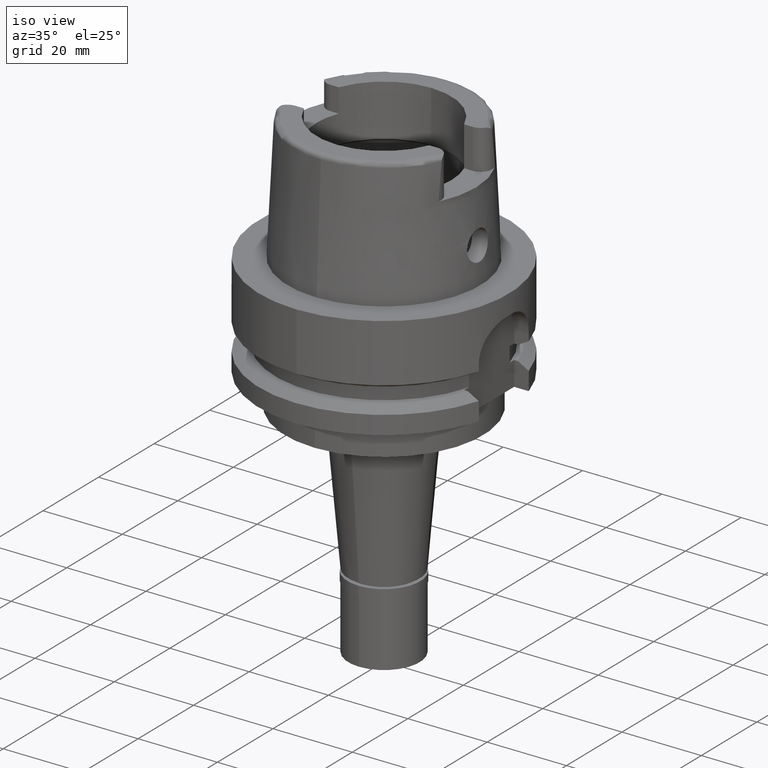
[diagram: clean part render]
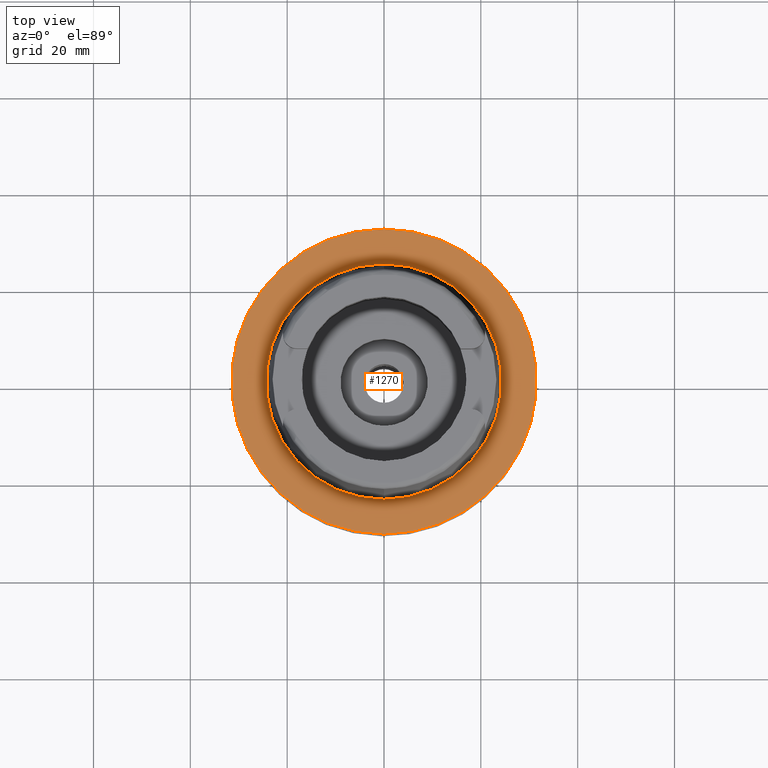
[diagram: tour spotlight — one face highlighted and labeled with its STEP entity id]
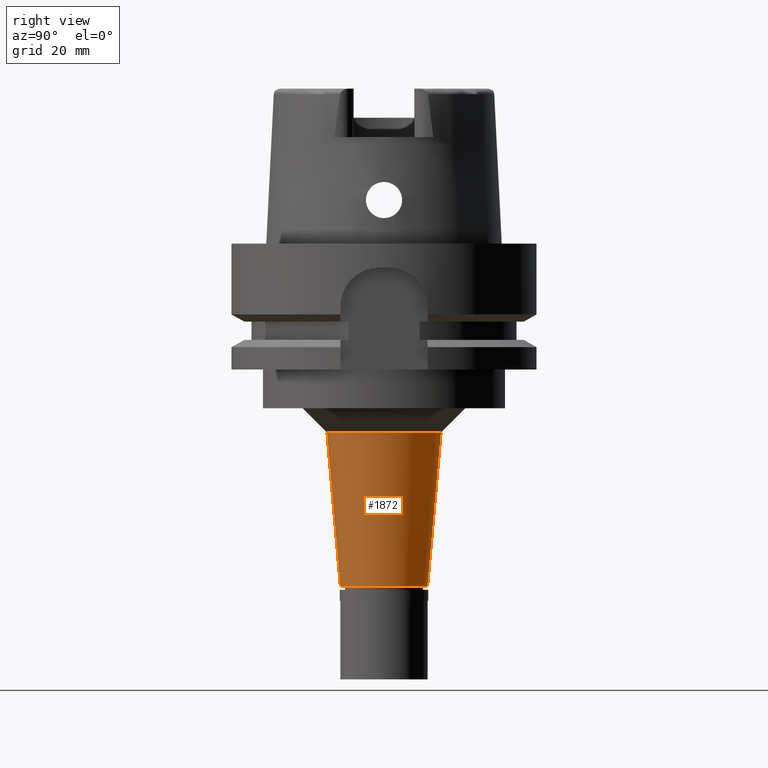
[diagram: tour spotlight — one face highlighted and labeled with its STEP entity id]
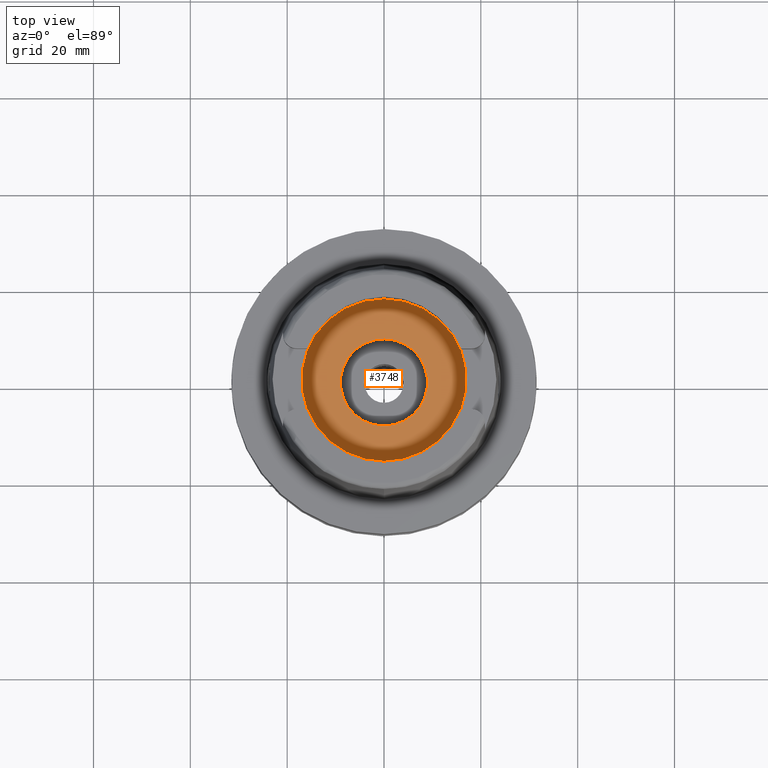
[diagram: tour spotlight — one face highlighted and labeled with its STEP entity id]
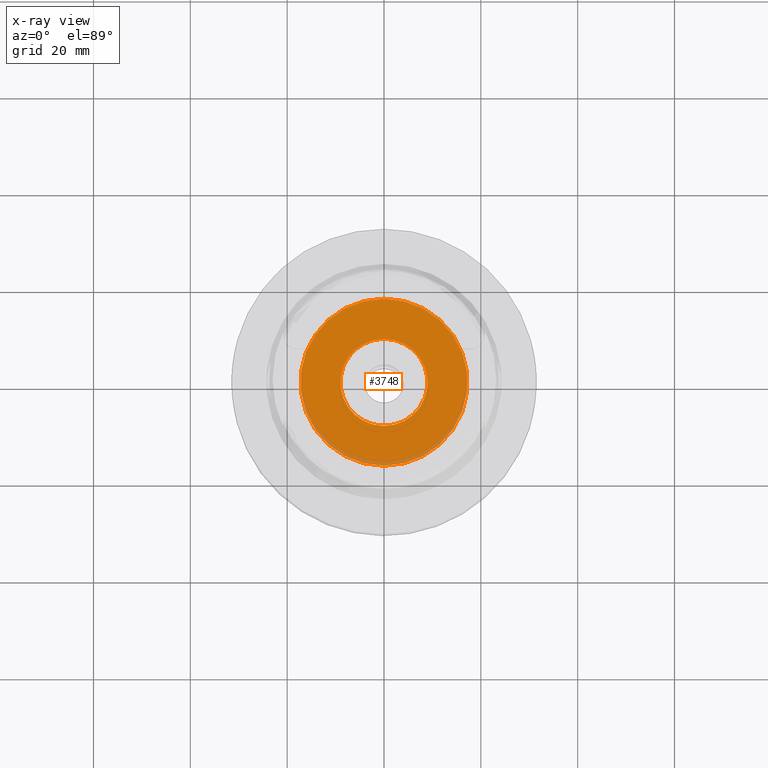
[diagram: x-ray of the same camera — body ghosted, this tour face saturated]
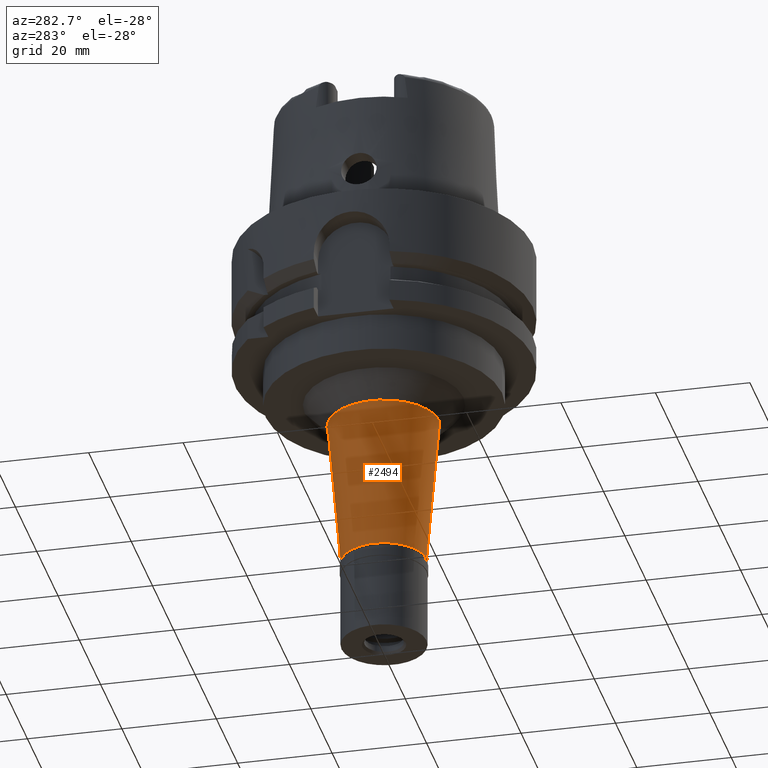
[diagram: tour spotlight — one face highlighted and labeled with its STEP entity id]
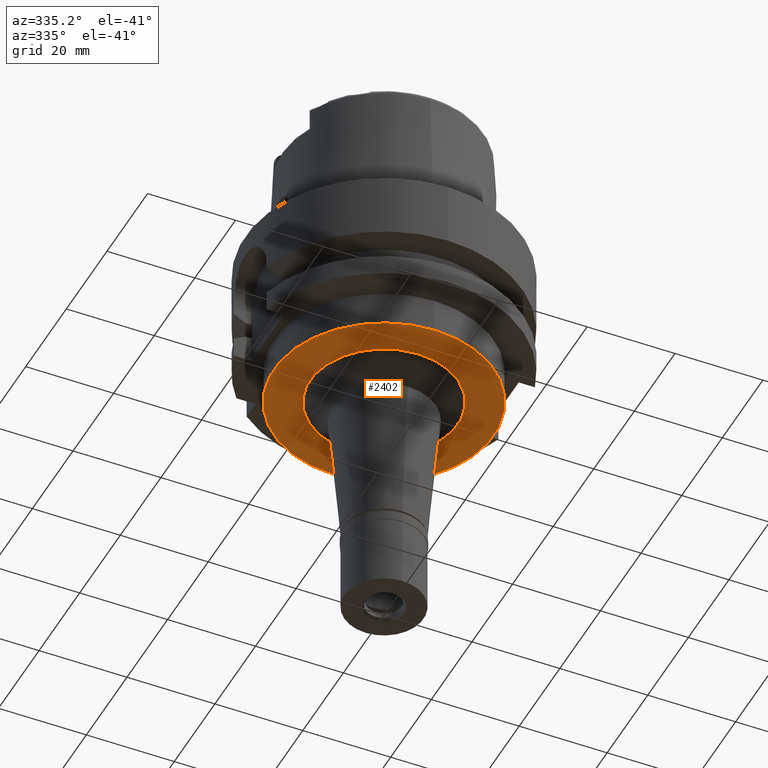
[diagram: tour spotlight — one face highlighted and labeled with its STEP entity id]
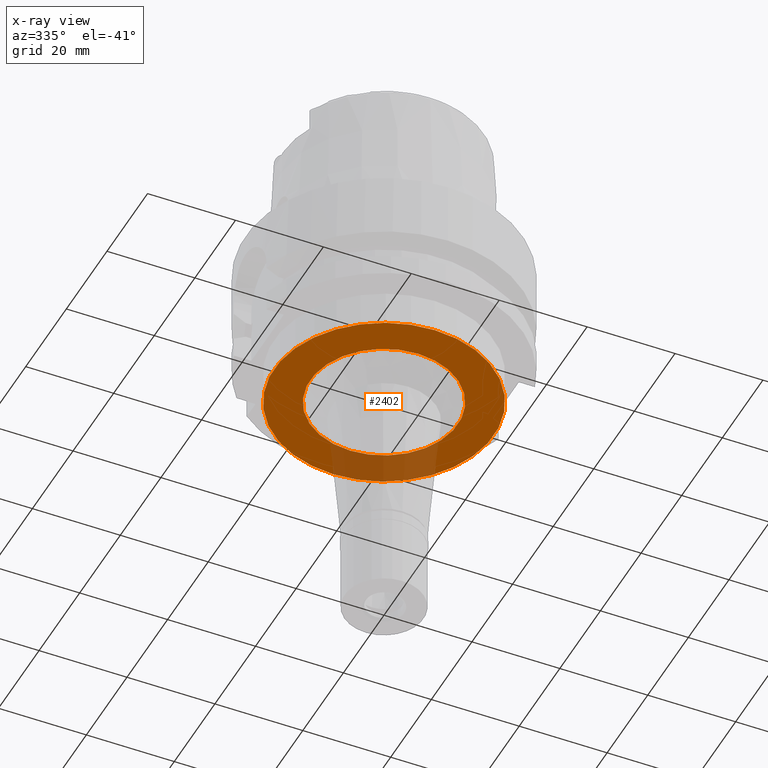
[diagram: x-ray of the same camera — body ghosted, this tour face saturated]
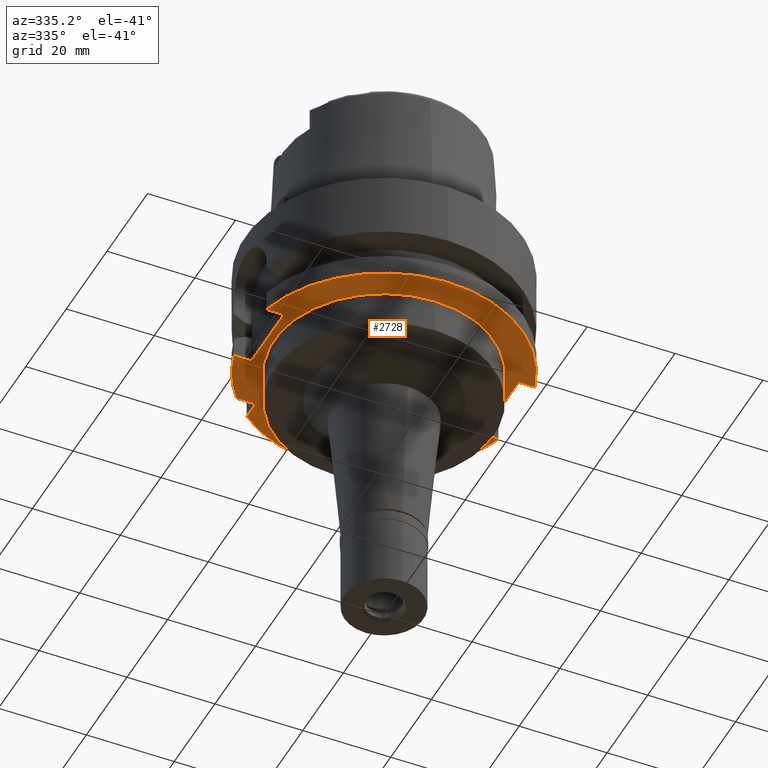
[diagram: tour spotlight — one face highlighted and labeled with its STEP entity id]
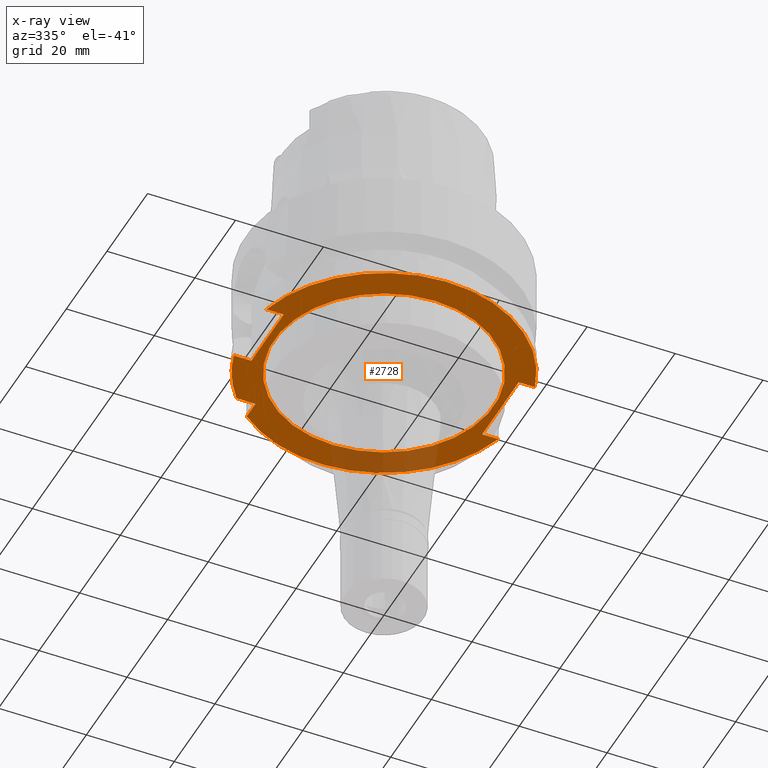
[diagram: x-ray of the same camera — body ghosted, this tour face saturated]
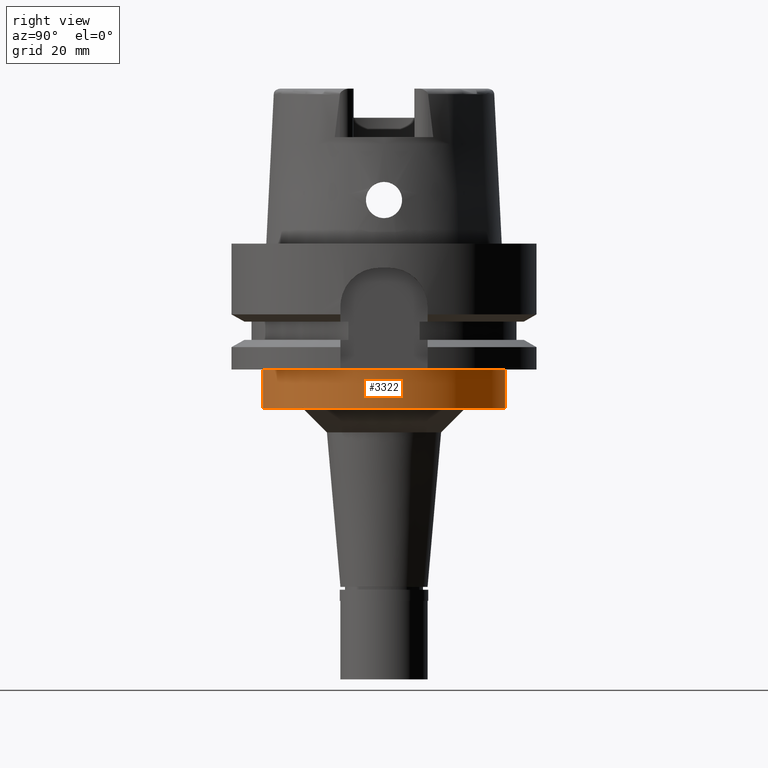
[diagram: tour spotlight — one face highlighted and labeled with its STEP entity id]
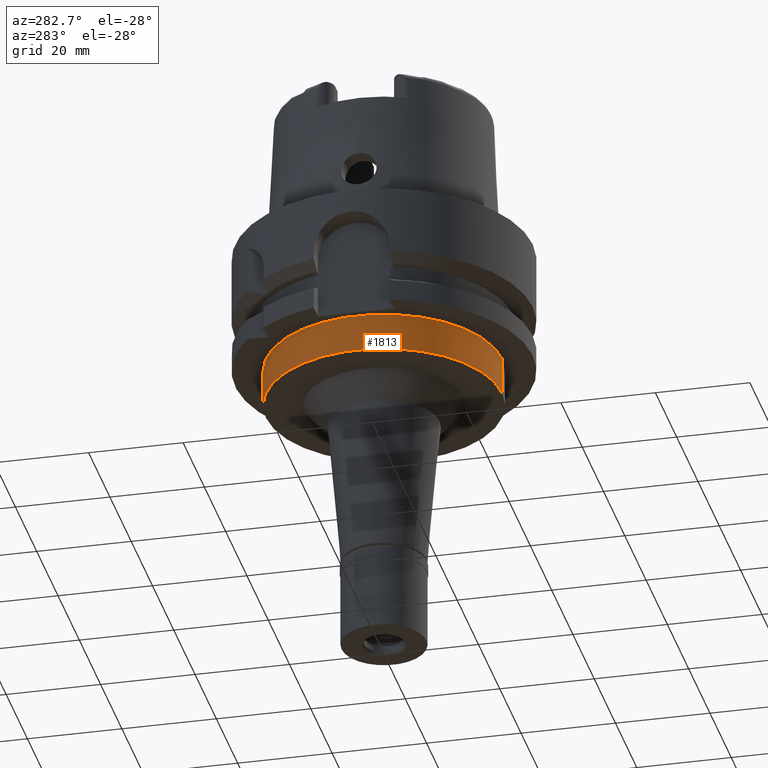
[diagram: tour spotlight — one face highlighted and labeled with its STEP entity id]
A machine part: a face-by-face anatomy tour. The part has 122 B-rep faces; the first image is the clean iso view, then the 8 largest visible faces are spotlighted one at a time (largest first), each with its STEP entity span.

Face 1 — top view, entity #1270. In plain terms, the highlighted planar face has unit normal (0, 0, -1).
Definition (entity closure, byte-faithful):
#33 = AXIS2_PLACEMENT_3D ( 'NONE', #4133, #1643, #1616 ) ;
#75 = VERTEX_POINT ( 'NONE', #925 ) ;
#276 = EDGE_CURVE ( 'NONE', #2488, #4883, #1035, .T. ) ;
#436 = DIRECTION ( 'NONE',  ( 0.0000000000000000000, 1.000000000000000000, 0.0000000000000000000 ) ) ;
#499 = CIRCLE ( 'NONE', #2821, 31.50000000000000000 ) ;
#646 = VERTEX_POINT ( 'NONE', #2199 ) ;
#719 = CARTESIAN_POINT ( 'NONE',  ( 0.0000000000000000000, -24.31503482328999866, 1.882938249763999678E-13 ) ) ;
#885 = DIRECTION ( 'NONE',  ( 0.0000000000000000000, 0.0000000000000000000, 1.000000000000000000 ) ) ;
#925 = CARTESIAN_POINT ( 'NONE',  ( 0.0000000000000000000, 31.50000000000000000, 9.947598300640998705E-14 ) ) ;
#1035 = CIRCLE ( 'NONE', #4176, 24.31503482328999866 ) ;
#1139 = AXIS2_PLACEMENT_3D ( 'NONE', #2075, #3732, #5024 ) ;
#1209 = AXIS2_PLACEMENT_3D ( 'NONE', #3405, #4173, #5042 ) ;
#1270 = ADVANCED_FACE ( 'NONE', ( #2435, #2013 ), #2912, .F. ) ;
#1616 = DIRECTION ( 'NONE',  ( 0.0000000000000000000, -1.000000000000000000, 0.0000000000000000000 ) ) ;
#1643 = DIRECTION ( 'NONE',  ( 0.0000000000000000000, 0.0000000000000000000, 1.000000000000000000 ) ) ;
#1875 = EDGE_LOOP ( 'NONE', ( #4930, #2035 ) ) ;
#2013 = FACE_BOUND ( 'NONE', #1875, .T. ) ;
#2035 = ORIENTED_EDGE ( 'NONE', *, *, #4897, .F. ) ;
#2071 = DIRECTION ( 'NONE',  ( 0.0000000000000000000, 0.0000000000000000000, -1.000000000000000000 ) ) ;
#2075 = CARTESIAN_POINT ( 'NONE',  ( 0.0000000000000000000, 0.0000000000000000000, 0.0000000000000000000 ) ) ;
#2178 = CARTESIAN_POINT ( 'NONE',  ( 0.0000000000000000000, 0.0000000000000000000, 1.136868377215999875E-13 ) ) ;
#2199 = CARTESIAN_POINT ( 'NONE',  ( 0.0000000000000000000, -31.50000000000000000, 9.947598300640998705E-14 ) ) ;
#2435 = FACE_OUTER_BOUND ( 'NONE', #2753, .T. ) ;
#2463 = CIRCLE ( 'NONE', #33, 24.31503482328999866 ) ;
#2488 = VERTEX_POINT ( 'NONE', #5317 ) ;
#2680 = ORIENTED_EDGE ( 'NONE', *, *, #4157, .F. ) ;
#2753 = EDGE_LOOP ( 'NONE', ( #4163, #2680 ) ) ;
#2821 = AXIS2_PLACEMENT_3D ( 'NONE', #4177, #2071, #4208 ) ;
#2912 = PLANE ( 'NONE',  #1139 ) ;
#3405 = CARTESIAN_POINT ( 'NONE',  ( 0.0000000000000000000, 0.0000000000000000000, 9.947598300640998705E-14 ) ) ;
#3732 = DIRECTION ( 'NONE',  ( 0.0000000000000000000, 0.0000000000000000000, -1.000000000000000000 ) ) ;
#4133 = CARTESIAN_POINT ( 'NONE',  ( 0.0000000000000000000, 0.0000000000000000000, 1.136868377215999875E-13 ) ) ;
#4157 = EDGE_CURVE ( 'NONE', #646, #75, #4169, .T. ) ;
#4163 = ORIENTED_EDGE ( 'NONE', *, *, #5475, .F. ) ;
#4169 = CIRCLE ( 'NONE', #1209, 31.50000000000000000 ) ;
#4173 = DIRECTION ( 'NONE',  ( 0.0000000000000000000, 0.0000000000000000000, -1.000000000000000000 ) ) ;
#4176 = AXIS2_PLACEMENT_3D ( 'NONE', #2178, #885, #436 ) ;
#4177 = CARTESIAN_POINT ( 'NONE',  ( 0.0000000000000000000, 0.0000000000000000000, 9.947598300640998705E-14 ) ) ;
#4208 = DIRECTION ( 'NONE',  ( 0.0000000000000000000, 1.000000000000000000, 0.0000000000000000000 ) ) ;
#4883 = VERTEX_POINT ( 'NONE', #719 ) ;
#4897 = EDGE_CURVE ( 'NONE', #4883, #2488, #2463, .T. ) ;
#4930 = ORIENTED_EDGE ( 'NONE', *, *, #276, .F. ) ;
#5024 = DIRECTION ( 'NONE',  ( 0.0000000000000000000, -1.000000000000000000, 0.0000000000000000000 ) ) ;
#5042 = DIRECTION ( 'NONE',  ( 0.0000000000000000000, -1.000000000000000000, 0.0000000000000000000 ) ) ;
#5317 = CARTESIAN_POINT ( 'NONE',  ( 0.0000000000000000000, 24.31503482328999866, 1.136868377215999875E-13 ) ) ;
#5475 = EDGE_CURVE ( 'NONE', #75, #646, #499, .T. ) ;

Face 2 — right view, entity #1872. In plain terms, the highlighted conical surface has half-angle 5 deg.
Definition (entity closure, byte-faithful):
#274 = CARTESIAN_POINT ( 'NONE',  ( 0.0000000000000000000, 9.000000000000998313, -70.90000000000000568 ) ) ;
#332 = ORIENTED_EDGE ( 'NONE', *, *, #2127, .F. ) ;
#550 = CARTESIAN_POINT ( 'NONE',  ( 0.0000000000000000000, 0.0000000000000000000, -39.00000000000000000 ) ) ;
#628 = DIRECTION ( 'NONE',  ( 0.0000000000000000000, 0.0000000000000000000, 1.000000000000000000 ) ) ;
#882 = DIRECTION ( 'NONE',  ( 0.0000000000000000000, 0.0000000000000000000, 1.000000000000000000 ) ) ;
#962 = LINE ( 'NONE', #4746, #5371 ) ;
#1042 = CARTESIAN_POINT ( 'NONE',  ( 0.0000000000000000000, 0.0000000000000000000, -70.90000000000000568 ) ) ;
#1156 = VERTEX_POINT ( 'NONE', #1608 ) ;
#1273 = ORIENTED_EDGE ( 'NONE', *, *, #1718, .T. ) ;
#1395 = DIRECTION ( 'NONE',  ( 0.0000000000000000000, 1.000000000000000000, 0.0000000000000000000 ) ) ;
#1506 = CONICAL_SURFACE ( 'NONE', #4016, 10.39544418324000041, 0.08726646259969973729 ) ;
#1513 = VERTEX_POINT ( 'NONE', #4990 ) ;
#1523 = CIRCLE ( 'NONE', #3219, 11.79088836648000083 ) ;
#1608 = CARTESIAN_POINT ( 'NONE',  ( 0.0000000000000000000, 11.79088836648000083, -39.00000000000000000 ) ) ;
#1718 = EDGE_CURVE ( 'NONE', #2755, #1513, #2208, .T. ) ;
#1872 = ADVANCED_FACE ( 'NONE', ( #2802 ), #1506, .T. ) ;
#1955 = EDGE_LOOP ( 'NONE', ( #4851, #1273, #4618, #332 ) ) ;
#2127 = EDGE_CURVE ( 'NONE', #1156, #5341, #962, .T. ) ;
#2208 = LINE ( 'NONE', #4257, #4105 ) ;
#2335 = DIRECTION ( 'NONE',  ( 0.0000000000000000000, -1.000000000000000000, 0.0000000000000000000 ) ) ;
#2624 = DIRECTION ( 'NONE',  ( 0.0000000000000000000, -0.08715574274770356011, -0.9961946980917415484 ) ) ;
#2755 = VERTEX_POINT ( 'NONE', #3806 ) ;
#2802 = FACE_OUTER_BOUND ( 'NONE', #1955, .T. ) ;
#2906 = EDGE_CURVE ( 'NONE', #2755, #1156, #1523, .T. ) ;
#3219 = AXIS2_PLACEMENT_3D ( 'NONE', #550, #882, #3489 ) ;
#3259 = DIRECTION ( 'NONE',  ( 0.0000000000000000000, 0.0000000000000000000, 1.000000000000000000 ) ) ;
#3489 = DIRECTION ( 'NONE',  ( 0.0000000000000000000, -1.000000000000000000, 0.0000000000000000000 ) ) ;
#3521 = CARTESIAN_POINT ( 'NONE',  ( 0.0000000000000000000, 0.0000000000000000000, -54.94999999999999574 ) ) ;
#3806 = CARTESIAN_POINT ( 'NONE',  ( 0.0000000000000000000, -11.79088836648000083, -39.00000000000000000 ) ) ;
#4016 = AXIS2_PLACEMENT_3D ( 'NONE', #3521, #3259, #1395 ) ;
#4105 = VECTOR ( 'NONE', #4316, 1000.000000000000000 ) ;
#4257 = CARTESIAN_POINT ( 'NONE',  ( 0.0000000000000000000, -11.79088836648000083, -39.00000000000000000 ) ) ;
#4316 = DIRECTION ( 'NONE',  ( 0.0000000000000000000, 0.08715574274770356011, -0.9961946980917415484 ) ) ;
#4444 = CIRCLE ( 'NONE', #4888, 9.000000000002000178 ) ;
#4618 = ORIENTED_EDGE ( 'NONE', *, *, #5012, .T. ) ;
#4746 = CARTESIAN_POINT ( 'NONE',  ( 0.0000000000000000000, 11.79088836648000083, -39.00000000000000000 ) ) ;
#4851 = ORIENTED_EDGE ( 'NONE', *, *, #2906, .F. ) ;
#4888 = AXIS2_PLACEMENT_3D ( 'NONE', #1042, #628, #2335 ) ;
#4990 = CARTESIAN_POINT ( 'NONE',  ( 0.0000000000000000000, -9.000000000002000178, -70.90000000000000568 ) ) ;
#5012 = EDGE_CURVE ( 'NONE', #1513, #5341, #4444, .T. ) ;
#5341 = VERTEX_POINT ( 'NONE', #274 ) ;
#5371 = VECTOR ( 'NONE', #2624, 1000.000000000000000 ) ;

Face 3 — top view, entity #3748. An x-ray twin of the same camera follows (body ghosted, this face saturated) — the face is partly hidden behind the body. In plain terms, the highlighted planar face has unit normal (0, 0, -1).
Definition (entity closure, byte-faithful):
#4 = CARTESIAN_POINT ( 'NONE',  ( 0.0000000000000000000, 17.25000000000000000, -9.950000000000001066 ) ) ;
#39 = CARTESIAN_POINT ( 'NONE',  ( 0.0000000000000000000, 0.0000000000000000000, -9.950000000000001066 ) ) ;
#151 = AXIS2_PLACEMENT_3D ( 'NONE', #39, #1762, #5192 ) ;
#164 = ORIENTED_EDGE ( 'NONE', *, *, #1450, .F. ) ;
#260 = DIRECTION ( 'NONE',  ( 0.0000000000000000000, -1.000000000000000000, 0.0000000000000000000 ) ) ;
#356 = DIRECTION ( 'NONE',  ( 0.0000000000000000000, 1.000000000000000000, 0.0000000000000000000 ) ) ;
#496 = CIRCLE ( 'NONE', #1212, 9.000000000000000000 ) ;
#505 = DIRECTION ( 'NONE',  ( 0.0000000000000000000, 0.0000000000000000000, 1.000000000000000000 ) ) ;
#522 = ORIENTED_EDGE ( 'NONE', *, *, #3122, .F. ) ;
#616 = DIRECTION ( 'NONE',  ( 0.0000000000000000000, -1.000000000000000000, 0.0000000000000000000 ) ) ;
#929 = CARTESIAN_POINT ( 'NONE',  ( 0.0000000000000000000, 0.0000000000000000000, -9.950000000000001066 ) ) ;
#955 = EDGE_LOOP ( 'NONE', ( #1830, #2176 ) ) ;
#1118 = CARTESIAN_POINT ( 'NONE',  ( 0.0000000000000000000, 0.0000000000000000000, -9.950000000000001066 ) ) ;
#1212 = AXIS2_PLACEMENT_3D ( 'NONE', #929, #505, #616 ) ;
#1263 = VERTEX_POINT ( 'NONE', #4582 ) ;
#1392 = CIRCLE ( 'NONE', #4791, 9.000000000000000000 ) ;
#1450 = EDGE_CURVE ( 'NONE', #4213, #4617, #5358, .T. ) ;
#1606 = DIRECTION ( 'NONE',  ( 0.0000000000000000000, -1.000000000000000000, 0.0000000000000000000 ) ) ;
#1762 = DIRECTION ( 'NONE',  ( 0.0000000000000000000, 0.0000000000000000000, -1.000000000000000000 ) ) ;
#1830 = ORIENTED_EDGE ( 'NONE', *, *, #4259, .F. ) ;
#1857 = DIRECTION ( 'NONE',  ( 0.0000000000000000000, 0.0000000000000000000, -1.000000000000000000 ) ) ;
#1954 = FACE_OUTER_BOUND ( 'NONE', #2628, .T. ) ;
#2011 = FACE_BOUND ( 'NONE', #955, .T. ) ;
#2176 = ORIENTED_EDGE ( 'NONE', *, *, #5227, .F. ) ;
#2358 = CARTESIAN_POINT ( 'NONE',  ( 0.0000000000000000000, 9.000000000000000000, -9.950000000000001066 ) ) ;
#2389 = CARTESIAN_POINT ( 'NONE',  ( 0.0000000000000000000, 0.0000000000000000000, -9.950000000000001066 ) ) ;
#2482 = DIRECTION ( 'NONE',  ( 0.0000000000000000000, 0.0000000000000000000, 1.000000000000000000 ) ) ;
#2628 = EDGE_LOOP ( 'NONE', ( #164, #522 ) ) ;
#3030 = AXIS2_PLACEMENT_3D ( 'NONE', #1118, #5455, #1606 ) ;
#3122 = EDGE_CURVE ( 'NONE', #4617, #4213, #3769, .T. ) ;
#3320 = CARTESIAN_POINT ( 'NONE',  ( 0.0000000000000000000, -17.25000000000000000, -9.950000000000001066 ) ) ;
#3730 = PLANE ( 'NONE',  #3030 ) ;
#3748 = ADVANCED_FACE ( 'NONE', ( #1954, #2011 ), #3730, .F. ) ;
#3769 = CIRCLE ( 'NONE', #4486, 17.25000000000000000 ) ;
#4213 = VERTEX_POINT ( 'NONE', #4 ) ;
#4259 = EDGE_CURVE ( 'NONE', #5134, #1263, #1392, .T. ) ;
#4486 = AXIS2_PLACEMENT_3D ( 'NONE', #2389, #1857, #260 ) ;
#4582 = CARTESIAN_POINT ( 'NONE',  ( 0.0000000000000000000, -9.000000000000000000, -9.950000000000001066 ) ) ;
#4617 = VERTEX_POINT ( 'NONE', #3320 ) ;
#4791 = AXIS2_PLACEMENT_3D ( 'NONE', #5478, #2482, #356 ) ;
#5134 = VERTEX_POINT ( 'NONE', #2358 ) ;
#5192 = DIRECTION ( 'NONE',  ( 0.0000000000000000000, 1.000000000000000000, 0.0000000000000000000 ) ) ;
#5227 = EDGE_CURVE ( 'NONE', #1263, #5134, #496, .T. ) ;
#5358 = CIRCLE ( 'NONE', #151, 17.25000000000000000 ) ;
#5455 = DIRECTION ( 'NONE',  ( 0.0000000000000000000, 0.0000000000000000000, -1.000000000000000000 ) ) ;
#5478 = CARTESIAN_POINT ( 'NONE',  ( 0.0000000000000000000, 0.0000000000000000000, -9.950000000000001066 ) ) ;

Face 4 — auxiliary view, entity #2494. In plain terms, the highlighted conical surface has half-angle 5 deg.
Definition (entity closure, byte-faithful):
#274 = CARTESIAN_POINT ( 'NONE',  ( 0.0000000000000000000, 9.000000000000998313, -70.90000000000000568 ) ) ;
#281 = DIRECTION ( 'NONE',  ( 0.0000000000000000000, 0.0000000000000000000, 1.000000000000000000 ) ) ;
#805 = DIRECTION ( 'NONE',  ( 0.0000000000000000000, -1.000000000000000000, 0.0000000000000000000 ) ) ;
#962 = LINE ( 'NONE', #4746, #5371 ) ;
#1156 = VERTEX_POINT ( 'NONE', #1608 ) ;
#1168 = ORIENTED_EDGE ( 'NONE', *, *, #2127, .T. ) ;
#1271 = CARTESIAN_POINT ( 'NONE',  ( 0.0000000000000000000, 0.0000000000000000000, -39.00000000000000000 ) ) ;
#1342 = AXIS2_PLACEMENT_3D ( 'NONE', #3279, #281, #4968 ) ;
#1513 = VERTEX_POINT ( 'NONE', #4990 ) ;
#1608 = CARTESIAN_POINT ( 'NONE',  ( 0.0000000000000000000, 11.79088836648000083, -39.00000000000000000 ) ) ;
#1718 = EDGE_CURVE ( 'NONE', #2755, #1513, #2208, .T. ) ;
#1953 = CIRCLE ( 'NONE', #2763, 9.000000000002000178 ) ;
#2127 = EDGE_CURVE ( 'NONE', #1156, #5341, #962, .T. ) ;
#2208 = LINE ( 'NONE', #4257, #4105 ) ;
#2494 = ADVANCED_FACE ( 'NONE', ( #3617 ), #2854, .T. ) ;
#2560 = EDGE_CURVE ( 'NONE', #5341, #1513, #1953, .T. ) ;
#2574 = EDGE_LOOP ( 'NONE', ( #5025, #2745, #4102, #1168 ) ) ;
#2624 = DIRECTION ( 'NONE',  ( 0.0000000000000000000, -0.08715574274770356011, -0.9961946980917415484 ) ) ;
#2745 = ORIENTED_EDGE ( 'NONE', *, *, #1718, .F. ) ;
#2755 = VERTEX_POINT ( 'NONE', #3806 ) ;
#2763 = AXIS2_PLACEMENT_3D ( 'NONE', #4498, #2828, #4555 ) ;
#2828 = DIRECTION ( 'NONE',  ( 0.0000000000000000000, 0.0000000000000000000, 1.000000000000000000 ) ) ;
#2854 = CONICAL_SURFACE ( 'NONE', #1342, 10.39544418324000041, 0.08726646259969973729 ) ;
#3279 = CARTESIAN_POINT ( 'NONE',  ( 0.0000000000000000000, 0.0000000000000000000, -54.94999999999999574 ) ) ;
#3617 = FACE_OUTER_BOUND ( 'NONE', #2574, .T. ) ;
#3806 = CARTESIAN_POINT ( 'NONE',  ( 0.0000000000000000000, -11.79088836648000083, -39.00000000000000000 ) ) ;
#4102 = ORIENTED_EDGE ( 'NONE', *, *, #4637, .T. ) ;
#4105 = VECTOR ( 'NONE', #4316, 1000.000000000000000 ) ;
#4257 = CARTESIAN_POINT ( 'NONE',  ( 0.0000000000000000000, -11.79088836648000083, -39.00000000000000000 ) ) ;
#4316 = DIRECTION ( 'NONE',  ( 0.0000000000000000000, 0.08715574274770356011, -0.9961946980917415484 ) ) ;
#4498 = CARTESIAN_POINT ( 'NONE',  ( 0.0000000000000000000, 0.0000000000000000000, -70.90000000000000568 ) ) ;
#4555 = DIRECTION ( 'NONE',  ( 0.0000000000000000000, 1.000000000000000000, 0.0000000000000000000 ) ) ;
#4637 = EDGE_CURVE ( 'NONE', #2755, #1156, #5256, .T. ) ;
#4647 = DIRECTION ( 'NONE',  ( 0.0000000000000000000, 0.0000000000000000000, -1.000000000000000000 ) ) ;
#4746 = CARTESIAN_POINT ( 'NONE',  ( 0.0000000000000000000, 11.79088836648000083, -39.00000000000000000 ) ) ;
#4796 = AXIS2_PLACEMENT_3D ( 'NONE', #1271, #4647, #805 ) ;
#4968 = DIRECTION ( 'NONE',  ( 0.0000000000000000000, 1.000000000000000000, 0.0000000000000000000 ) ) ;
#4990 = CARTESIAN_POINT ( 'NONE',  ( 0.0000000000000000000, -9.000000000002000178, -70.90000000000000568 ) ) ;
#5025 = ORIENTED_EDGE ( 'NONE', *, *, #2560, .T. ) ;
#5256 = CIRCLE ( 'NONE', #4796, 11.79088836648000083 ) ;
#5341 = VERTEX_POINT ( 'NONE', #274 ) ;
#5371 = VECTOR ( 'NONE', #2624, 1000.000000000000000 ) ;

Face 5 — auxiliary view, entity #2402. An x-ray twin of the same camera follows (body ghosted, this face saturated) — the face is partly hidden behind the body. In plain terms, the highlighted planar face has unit normal (0, 0, -1).
Definition (entity closure, byte-faithful):
#70 = CIRCLE ( 'NONE', #5102, 16.79088836648000083 ) ;
#100 = CARTESIAN_POINT ( 'NONE',  ( 0.0000000000000000000, -16.79088836648000083, -34.00000000000000000 ) ) ;
#209 = CARTESIAN_POINT ( 'NONE',  ( 0.0000000000000000000, 0.0000000000000000000, -34.00000000000000000 ) ) ;
#399 = EDGE_CURVE ( 'NONE', #3007, #1160, #2635, .T. ) ;
#595 = PLANE ( 'NONE',  #3663 ) ;
#645 = DIRECTION ( 'NONE',  ( 0.0000000000000000000, 0.0000000000000000000, -1.000000000000000000 ) ) ;
#680 = DIRECTION ( 'NONE',  ( 0.0000000000000000000, 0.0000000000000000000, -1.000000000000000000 ) ) ;
#858 = DIRECTION ( 'NONE',  ( 0.0000000000000000000, 1.000000000000000000, 0.0000000000000000000 ) ) ;
#912 = CARTESIAN_POINT ( 'NONE',  ( 0.0000000000000000000, 25.00000000000000000, -34.00000000000000000 ) ) ;
#1077 = EDGE_LOOP ( 'NONE', ( #1522, #2873 ) ) ;
#1160 = VERTEX_POINT ( 'NONE', #4214 ) ;
#1339 = CARTESIAN_POINT ( 'NONE',  ( 0.0000000000000000000, 0.0000000000000000000, -34.00000000000000000 ) ) ;
#1521 = DIRECTION ( 'NONE',  ( 0.0000000000000000000, -1.000000000000000000, 0.0000000000000000000 ) ) ;
#1522 = ORIENTED_EDGE ( 'NONE', *, *, #399, .F. ) ;
#2209 = AXIS2_PLACEMENT_3D ( 'NONE', #1339, #4678, #858 ) ;
#2357 = EDGE_LOOP ( 'NONE', ( #4448, #4869 ) ) ;
#2402 = ADVANCED_FACE ( 'NONE', ( #4910, #4526 ), #595, .T. ) ;
#2405 = CIRCLE ( 'NONE', #5561, 25.00000000000000000 ) ;
#2433 = DIRECTION ( 'NONE',  ( 0.0000000000000000000, 0.0000000000000000000, -1.000000000000000000 ) ) ;
#2635 = CIRCLE ( 'NONE', #2209, 25.00000000000000000 ) ;
#2744 = CARTESIAN_POINT ( 'NONE',  ( 0.0000000000000000000, 0.0000000000000000000, -34.00000000000000000 ) ) ;
#2873 = ORIENTED_EDGE ( 'NONE', *, *, #3986, .F. ) ;
#2874 = DIRECTION ( 'NONE',  ( 0.0000000000000000000, 0.0000000000000000000, 1.000000000000000000 ) ) ;
#3007 = VERTEX_POINT ( 'NONE', #912 ) ;
#3663 = AXIS2_PLACEMENT_3D ( 'NONE', #2744, #680, #1521 ) ;
#3721 = CARTESIAN_POINT ( 'NONE',  ( 0.0000000000000000000, 16.79088836648000083, -34.00000000000000000 ) ) ;
#3740 = EDGE_CURVE ( 'NONE', #5249, #4135, #70, .T. ) ;
#3778 = EDGE_CURVE ( 'NONE', #4135, #5249, #4476, .T. ) ;
#3899 = DIRECTION ( 'NONE',  ( 0.0000000000000000000, 1.000000000000000000, 0.0000000000000000000 ) ) ;
#3986 = EDGE_CURVE ( 'NONE', #1160, #3007, #2405, .T. ) ;
#4135 = VERTEX_POINT ( 'NONE', #3721 ) ;
#4141 = DIRECTION ( 'NONE',  ( 0.0000000000000000000, -1.000000000000000000, 0.0000000000000000000 ) ) ;
#4150 = DIRECTION ( 'NONE',  ( 0.0000000000000000000, -1.000000000000000000, 0.0000000000000000000 ) ) ;
#4180 = CARTESIAN_POINT ( 'NONE',  ( 0.0000000000000000000, 0.0000000000000000000, -34.00000000000000000 ) ) ;
#4214 = CARTESIAN_POINT ( 'NONE',  ( 0.0000000000000000000, -25.00000000000000000, -34.00000000000000000 ) ) ;
#4448 = ORIENTED_EDGE ( 'NONE', *, *, #3778, .F. ) ;
#4476 = CIRCLE ( 'NONE', #5377, 16.79088836648000083 ) ;
#4526 = FACE_BOUND ( 'NONE', #2357, .T. ) ;
#4678 = DIRECTION ( 'NONE',  ( 0.0000000000000000000, 0.0000000000000000000, 1.000000000000000000 ) ) ;
#4869 = ORIENTED_EDGE ( 'NONE', *, *, #3740, .F. ) ;
#4910 = FACE_OUTER_BOUND ( 'NONE', #1077, .T. ) ;
#5102 = AXIS2_PLACEMENT_3D ( 'NONE', #5367, #2433, #4150 ) ;
#5249 = VERTEX_POINT ( 'NONE', #100 ) ;
#5367 = CARTESIAN_POINT ( 'NONE',  ( 0.0000000000000000000, 0.0000000000000000000, -34.00000000000000000 ) ) ;
#5377 = AXIS2_PLACEMENT_3D ( 'NONE', #4180, #645, #3899 ) ;
#5561 = AXIS2_PLACEMENT_3D ( 'NONE', #209, #2874, #4141 ) ;

Face 6 — auxiliary view, entity #2728. An x-ray twin of the same camera follows (body ghosted, this face saturated) — the face is partly hidden behind the body. In plain terms, the highlighted planar face has unit normal (0, 0, -1).
Definition (entity closure, byte-faithful):
#114 = CARTESIAN_POINT ( 'NONE',  ( 0.0000000000000000000, -25.00000000000000000, -26.00000000000000000 ) ) ;
#169 = AXIS2_PLACEMENT_3D ( 'NONE', #542, #3964, #3992 ) ;
#177 = DIRECTION ( 'NONE',  ( -1.000000000000000000, -8.776122650817999518E-14, 0.0000000000000000000 ) ) ;
#189 = CARTESIAN_POINT ( 'NONE',  ( -26.50000000000000000, 8.000000000000000000, -26.00000000000000000 ) ) ;
#198 = EDGE_CURVE ( 'NONE', #2911, #2156, #597, .T. ) ;
#208 = LINE ( 'NONE', #3294, #1672 ) ;
#216 = CARTESIAN_POINT ( 'NONE',  ( -26.50000000000000000, 8.000000000000000000, -26.00000000000000000 ) ) ;
#328 = DIRECTION ( 'NONE',  ( -1.000000000000000000, -7.226999566092000914E-14, 0.0000000000000000000 ) ) ;
#361 = VECTOR ( 'NONE', #3112, 1000.000000000000000 ) ;
#429 = VERTEX_POINT ( 'NONE', #2612 ) ;
#524 = DIRECTION ( 'NONE',  ( -1.000000000000000000, -1.540316790609000194E-13, 0.0000000000000000000 ) ) ;
#542 = CARTESIAN_POINT ( 'NONE',  ( 0.0000000000000000000, 0.0000000000000000000, -26.00000000000000000 ) ) ;
#597 = CIRCLE ( 'NONE', #3366, 25.00000000000000000 ) ;
#754 = DIRECTION ( 'NONE',  ( 0.0000000000000000000, -1.000000000000000000, 0.0000000000000000000 ) ) ;
#779 = CARTESIAN_POINT ( 'NONE',  ( 0.0000000000000000000, 0.0000000000000000000, -26.00000000000000000 ) ) ;
#814 = DIRECTION ( 'NONE',  ( 0.0000000000000000000, 1.000000000000000000, 0.0000000000000000000 ) ) ;
#853 = ORIENTED_EDGE ( 'NONE', *, *, #5406, .T. ) ;
#855 = DIRECTION ( 'NONE',  ( 0.0000000000000000000, 0.0000000000000000000, -1.000000000000000000 ) ) ;
#901 = EDGE_CURVE ( 'NONE', #3338, #3438, #1411, .T. ) ;
#913 = VERTEX_POINT ( 'NONE', #2623 ) ;
#977 = LINE ( 'NONE', #2673, #4570 ) ;
#997 = VERTEX_POINT ( 'NONE', #216 ) ;
#1010 = CARTESIAN_POINT ( 'NONE',  ( -20.00000000000000000, 24.33618704727999926, -26.00000000000000000 ) ) ;
#1040 = VERTEX_POINT ( 'NONE', #1897 ) ;
#1045 = AXIS2_PLACEMENT_3D ( 'NONE', #2190, #3910, #4384 ) ;
#1055 = EDGE_CURVE ( 'NONE', #3338, #429, #4934, .T. ) ;
#1230 = DIRECTION ( 'NONE',  ( 0.0000000000000000000, 1.000000000000000000, 0.0000000000000000000 ) ) ;
#1411 = CIRCLE ( 'NONE', #1045, 31.50000000000000000 ) ;
#1421 = ORIENTED_EDGE ( 'NONE', *, *, #2302, .F. ) ;
#1440 = CARTESIAN_POINT ( 'NONE',  ( 0.0000000000000000000, 25.00000000000000000, -26.00000000000000000 ) ) ;
#1603 = AXIS2_PLACEMENT_3D ( 'NONE', #2468, #4190, #2971 ) ;
#1632 = DIRECTION ( 'NONE',  ( 0.0000000000000000000, 0.0000000000000000000, -1.000000000000000000 ) ) ;
#1672 = VECTOR ( 'NONE', #4985, 1000.000000000000000 ) ;
#1700 = FACE_OUTER_BOUND ( 'NONE', #1766, .T. ) ;
#1766 = EDGE_LOOP ( 'NONE', ( #5260, #2203, #4650, #3375, #1421, #1982, #853, #3580, #3574, #2996, #2420 ) ) ;
#1897 = CARTESIAN_POINT ( 'NONE',  ( -26.50000000000000000, -8.000000000000000000, -26.00000000000000000 ) ) ;
#1922 = CIRCLE ( 'NONE', #5532, 25.00000000000000000 ) ;
#1927 = CARTESIAN_POINT ( 'NONE',  ( 30.18691769625000276, 9.000000000000000000, -26.00000000000000000 ) ) ;
#1972 = VERTEX_POINT ( 'NONE', #2522 ) ;
#1982 = ORIENTED_EDGE ( 'NONE', *, *, #3153, .F. ) ;
#1992 = EDGE_CURVE ( 'NONE', #913, #1972, #2571, .T. ) ;
#2140 = VECTOR ( 'NONE', #328, 1000.000000000000000 ) ;
#2156 = VERTEX_POINT ( 'NONE', #1440 ) ;
#2185 = VERTEX_POINT ( 'NONE', #4829 ) ;
#2190 = CARTESIAN_POINT ( 'NONE',  ( 0.0000000000000000000, 0.0000000000000000000, -26.00000000000000000 ) ) ;
#2203 = ORIENTED_EDGE ( 'NONE', *, *, #1055, .T. ) ;
#2239 = VECTOR ( 'NONE', #524, 1000.000000000000000 ) ;
#2302 = EDGE_CURVE ( 'NONE', #3775, #4535, #4742, .T. ) ;
#2304 = LINE ( 'NONE', #189, #361 ) ;
#2420 = ORIENTED_EDGE ( 'NONE', *, *, #3978, .T. ) ;
#2468 = CARTESIAN_POINT ( 'NONE',  ( 0.0000000000000000000, 0.0000000000000000000, -26.00000000000000000 ) ) ;
#2522 = CARTESIAN_POINT ( 'NONE',  ( -30.46719547316000032, 8.000000000000000000, -26.00000000000000000 ) ) ;
#2571 = CIRCLE ( 'NONE', #1603, 31.50000000000000711 ) ;
#2612 = CARTESIAN_POINT ( 'NONE',  ( 26.50000000000000000, 9.000000000000000000, -26.00000000000000000 ) ) ;
#2623 = CARTESIAN_POINT ( 'NONE',  ( -24.33618704727619786, 19.99999999999964828, -26.00000000000000000 ) ) ;
#2673 = CARTESIAN_POINT ( 'NONE',  ( -20.00000000000000000, 20.00000000000000000, -26.00000000000000000 ) ) ;
#2728 = ADVANCED_FACE ( 'NONE', ( #1700, #5476 ), #5013, .T. ) ;
#2780 = CARTESIAN_POINT ( 'NONE',  ( -26.50000000000000000, -8.000000000000000000, -26.00000000000000000 ) ) ;
#2797 = EDGE_LOOP ( 'NONE', ( #5081, #3071 ) ) ;
#2875 = CARTESIAN_POINT ( 'NONE',  ( 0.0000000000000000000, 0.0000000000000000000, -26.00000000000000000 ) ) ;
#2885 = EDGE_CURVE ( 'NONE', #2185, #913, #3949, .T. ) ;
#2911 = VERTEX_POINT ( 'NONE', #114 ) ;
#2951 = CARTESIAN_POINT ( 'NONE',  ( 26.50000000000000000, -9.000000000000000000, -26.00000000000000000 ) ) ;
#2971 = DIRECTION ( 'NONE',  ( -0.7725773665802099233, 0.6349206349206079070, 0.0000000000000000000 ) ) ;
#2996 = ORIENTED_EDGE ( 'NONE', *, *, #2885, .F. ) ;
#3070 = CARTESIAN_POINT ( 'NONE',  ( -20.00000000000000000, 20.00000000000000000, -26.00000000000000000 ) ) ;
#3071 = ORIENTED_EDGE ( 'NONE', *, *, #198, .F. ) ;
#3112 = DIRECTION ( 'NONE',  ( -1.000000000000000000, 8.686570378870000015E-14, 0.0000000000000000000 ) ) ;
#3153 = EDGE_CURVE ( 'NONE', #1040, #3775, #4864, .T. ) ;
#3294 = CARTESIAN_POINT ( 'NONE',  ( -26.50000000000000000, -8.000000000000000000, -26.00000000000000000 ) ) ;
#3338 = VERTEX_POINT ( 'NONE', #4194 ) ;
#3366 = AXIS2_PLACEMENT_3D ( 'NONE', #2875, #4602, #754 ) ;
#3375 = ORIENTED_EDGE ( 'NONE', *, *, #3600, .F. ) ;
#3438 = VERTEX_POINT ( 'NONE', #1010 ) ;
#3484 = EDGE_CURVE ( 'NONE', #997, #1972, #2304, .T. ) ;
#3574 = ORIENTED_EDGE ( 'NONE', *, *, #1992, .F. ) ;
#3580 = ORIENTED_EDGE ( 'NONE', *, *, #3484, .T. ) ;
#3600 = EDGE_CURVE ( 'NONE', #4535, #4657, #4067, .T. ) ;
#3646 = DIRECTION ( 'NONE',  ( -1.000000000000000000, 6.889739586341000002E-14, 0.0000000000000000000 ) ) ;
#3703 = CARTESIAN_POINT ( 'NONE',  ( 30.18691769625000276, -9.000000000000000000, -26.00000000000000000 ) ) ;
#3753 = DIRECTION ( 'NONE',  ( 0.0000000000000000000, -1.000000000000000000, 0.0000000000000000000 ) ) ;
#3775 = VERTEX_POINT ( 'NONE', #4494 ) ;
#3813 = EDGE_CURVE ( 'NONE', #4657, #429, #4293, .T. ) ;
#3910 = DIRECTION ( 'NONE',  ( 0.0000000000000000000, 0.0000000000000000000, 1.000000000000000000 ) ) ;
#3944 = AXIS2_PLACEMENT_3D ( 'NONE', #779, #855, #3753 ) ;
#3949 = LINE ( 'NONE', #3070, #2239 ) ;
#3964 = DIRECTION ( 'NONE',  ( 0.0000000000000000000, 0.0000000000000000000, 1.000000000000000000 ) ) ;
#3978 = EDGE_CURVE ( 'NONE', #2185, #3438, #977, .T. ) ;
#3992 = DIRECTION ( 'NONE',  ( 0.0000000000000000000, -1.000000000000000000, 0.0000000000000000000 ) ) ;
#4067 = LINE ( 'NONE', #3703, #2140 ) ;
#4185 = VECTOR ( 'NONE', #3646, 1000.000000000000000 ) ;
#4190 = DIRECTION ( 'NONE',  ( 0.0000000000000000000, 0.0000000000000000000, 1.000000000000000000 ) ) ;
#4194 = CARTESIAN_POINT ( 'NONE',  ( 30.18691769625000276, 9.000000000000000000, -26.00000000000000000 ) ) ;
#4293 = LINE ( 'NONE', #5540, #5193 ) ;
#4384 = DIRECTION ( 'NONE',  ( 0.0000000000000000000, 1.000000000000000000, 0.0000000000000000000 ) ) ;
#4494 = CARTESIAN_POINT ( 'NONE',  ( -30.46719547316000032, -8.000000000000000000, -26.00000000000000000 ) ) ;
#4535 = VERTEX_POINT ( 'NONE', #5353 ) ;
#4570 = VECTOR ( 'NONE', #4846, 1000.000000000000000 ) ;
#4602 = DIRECTION ( 'NONE',  ( 0.0000000000000000000, 0.0000000000000000000, -1.000000000000000000 ) ) ;
#4650 = ORIENTED_EDGE ( 'NONE', *, *, #3813, .F. ) ;
#4657 = VERTEX_POINT ( 'NONE', #2951 ) ;
#4682 = CARTESIAN_POINT ( 'NONE',  ( 0.0000000000000000000, 0.0000000000000000000, -26.00000000000000000 ) ) ;
#4742 = CIRCLE ( 'NONE', #169, 31.50000000000000000 ) ;
#4829 = CARTESIAN_POINT ( 'NONE',  ( -20.00000000000000000, 20.00000000000000000, -26.00000000000000000 ) ) ;
#4846 = DIRECTION ( 'NONE',  ( 1.540316790609000194E-13, 1.000000000000000000, 0.0000000000000000000 ) ) ;
#4864 = LINE ( 'NONE', #2780, #5569 ) ;
#4934 = LINE ( 'NONE', #1927, #4185 ) ;
#4985 = DIRECTION ( 'NONE',  ( 0.0000000000000000000, 1.000000000000000000, 0.0000000000000000000 ) ) ;
#5013 = PLANE ( 'NONE',  #3944 ) ;
#5081 = ORIENTED_EDGE ( 'NONE', *, *, #5500, .F. ) ;
#5193 = VECTOR ( 'NONE', #1230, 1000.000000000000000 ) ;
#5260 = ORIENTED_EDGE ( 'NONE', *, *, #901, .F. ) ;
#5353 = CARTESIAN_POINT ( 'NONE',  ( 30.18691769625000276, -9.000000000000000000, -26.00000000000000000 ) ) ;
#5406 = EDGE_CURVE ( 'NONE', #1040, #997, #208, .T. ) ;
#5476 = FACE_BOUND ( 'NONE', #2797, .T. ) ;
#5500 = EDGE_CURVE ( 'NONE', #2156, #2911, #1922, .T. ) ;
#5532 = AXIS2_PLACEMENT_3D ( 'NONE', #4682, #1632, #814 ) ;
#5540 = CARTESIAN_POINT ( 'NONE',  ( 26.50000000000000000, -9.000000000000000000, -26.00000000000000000 ) ) ;
#5569 = VECTOR ( 'NONE', #177, 1000.000000000000000 ) ;

Face 7 — right view, entity #3322. In plain terms, the highlighted cylindrical surface (partial cylindrical patch) has radius 25 mm, axis along (0, 0, -1).
Definition (entity closure, byte-faithful):
#78 = DIRECTION ( 'NONE',  ( 0.0000000000000000000, 0.0000000000000000000, -1.000000000000000000 ) ) ;
#114 = CARTESIAN_POINT ( 'NONE',  ( 0.0000000000000000000, -25.00000000000000000, -26.00000000000000000 ) ) ;
#209 = CARTESIAN_POINT ( 'NONE',  ( 0.0000000000000000000, 0.0000000000000000000, -34.00000000000000000 ) ) ;
#313 = DIRECTION ( 'NONE',  ( 0.0000000000000000000, 0.0000000000000000000, -1.000000000000000000 ) ) ;
#512 = CARTESIAN_POINT ( 'NONE',  ( 0.0000000000000000000, 25.00000000000000000, -26.00000000000000000 ) ) ;
#746 = FACE_OUTER_BOUND ( 'NONE', #1215, .T. ) ;
#772 = CYLINDRICAL_SURFACE ( 'NONE', #2773, 25.00000000000000000 ) ;
#814 = DIRECTION ( 'NONE',  ( 0.0000000000000000000, 1.000000000000000000, 0.0000000000000000000 ) ) ;
#825 = DIRECTION ( 'NONE',  ( 0.0000000000000000000, -1.000000000000000000, 0.0000000000000000000 ) ) ;
#912 = CARTESIAN_POINT ( 'NONE',  ( 0.0000000000000000000, 25.00000000000000000, -34.00000000000000000 ) ) ;
#1160 = VERTEX_POINT ( 'NONE', #4214 ) ;
#1215 = EDGE_LOOP ( 'NONE', ( #4116, #5023, #1467, #5085 ) ) ;
#1440 = CARTESIAN_POINT ( 'NONE',  ( 0.0000000000000000000, 25.00000000000000000, -26.00000000000000000 ) ) ;
#1467 = ORIENTED_EDGE ( 'NONE', *, *, #3986, .T. ) ;
#1632 = DIRECTION ( 'NONE',  ( 0.0000000000000000000, 0.0000000000000000000, -1.000000000000000000 ) ) ;
#1922 = CIRCLE ( 'NONE', #5532, 25.00000000000000000 ) ;
#2088 = EDGE_CURVE ( 'NONE', #2911, #1160, #3859, .T. ) ;
#2136 = DIRECTION ( 'NONE',  ( 0.0000000000000000000, 0.0000000000000000000, -1.000000000000000000 ) ) ;
#2156 = VERTEX_POINT ( 'NONE', #1440 ) ;
#2160 = EDGE_CURVE ( 'NONE', #2156, #3007, #2601, .T. ) ;
#2405 = CIRCLE ( 'NONE', #5561, 25.00000000000000000 ) ;
#2601 = LINE ( 'NONE', #512, #3119 ) ;
#2773 = AXIS2_PLACEMENT_3D ( 'NONE', #4668, #313, #825 ) ;
#2874 = DIRECTION ( 'NONE',  ( 0.0000000000000000000, 0.0000000000000000000, 1.000000000000000000 ) ) ;
#2911 = VERTEX_POINT ( 'NONE', #114 ) ;
#3007 = VERTEX_POINT ( 'NONE', #912 ) ;
#3119 = VECTOR ( 'NONE', #78, 1000.000000000000000 ) ;
#3322 = ADVANCED_FACE ( 'NONE', ( #746 ), #772, .T. ) ;
#3859 = LINE ( 'NONE', #5115, #4909 ) ;
#3986 = EDGE_CURVE ( 'NONE', #1160, #3007, #2405, .T. ) ;
#4116 = ORIENTED_EDGE ( 'NONE', *, *, #5500, .T. ) ;
#4141 = DIRECTION ( 'NONE',  ( 0.0000000000000000000, -1.000000000000000000, 0.0000000000000000000 ) ) ;
#4214 = CARTESIAN_POINT ( 'NONE',  ( 0.0000000000000000000, -25.00000000000000000, -34.00000000000000000 ) ) ;
#4668 = CARTESIAN_POINT ( 'NONE',  ( 0.0000000000000000000, 0.0000000000000000000, 37.86999999999999744 ) ) ;
#4682 = CARTESIAN_POINT ( 'NONE',  ( 0.0000000000000000000, 0.0000000000000000000, -26.00000000000000000 ) ) ;
#4909 = VECTOR ( 'NONE', #2136, 1000.000000000000000 ) ;
#5023 = ORIENTED_EDGE ( 'NONE', *, *, #2088, .T. ) ;
#5085 = ORIENTED_EDGE ( 'NONE', *, *, #2160, .F. ) ;
#5115 = CARTESIAN_POINT ( 'NONE',  ( 0.0000000000000000000, -25.00000000000000000, -26.00000000000000000 ) ) ;
#5500 = EDGE_CURVE ( 'NONE', #2156, #2911, #1922, .T. ) ;
#5532 = AXIS2_PLACEMENT_3D ( 'NONE', #4682, #1632, #814 ) ;
#5561 = AXIS2_PLACEMENT_3D ( 'NONE', #209, #2874, #4141 ) ;

Face 8 — auxiliary view, entity #1813. In plain terms, the highlighted cylindrical surface (partial cylindrical patch) has radius 25 mm, axis along (0, 0, -1).
Definition (entity closure, byte-faithful):
#77 = ORIENTED_EDGE ( 'NONE', *, *, #399, .T. ) ;
#78 = DIRECTION ( 'NONE',  ( 0.0000000000000000000, 0.0000000000000000000, -1.000000000000000000 ) ) ;
#114 = CARTESIAN_POINT ( 'NONE',  ( 0.0000000000000000000, -25.00000000000000000, -26.00000000000000000 ) ) ;
#198 = EDGE_CURVE ( 'NONE', #2911, #2156, #597, .T. ) ;
#310 = FACE_OUTER_BOUND ( 'NONE', #4378, .T. ) ;
#329 = ORIENTED_EDGE ( 'NONE', *, *, #2088, .F. ) ;
#399 = EDGE_CURVE ( 'NONE', #3007, #1160, #2635, .T. ) ;
#512 = CARTESIAN_POINT ( 'NONE',  ( 0.0000000000000000000, 25.00000000000000000, -26.00000000000000000 ) ) ;
#597 = CIRCLE ( 'NONE', #3366, 25.00000000000000000 ) ;
#631 = CYLINDRICAL_SURFACE ( 'NONE', #4902, 25.00000000000000000 ) ;
#754 = DIRECTION ( 'NONE',  ( 0.0000000000000000000, -1.000000000000000000, 0.0000000000000000000 ) ) ;
#858 = DIRECTION ( 'NONE',  ( 0.0000000000000000000, 1.000000000000000000, 0.0000000000000000000 ) ) ;
#912 = CARTESIAN_POINT ( 'NONE',  ( 0.0000000000000000000, 25.00000000000000000, -34.00000000000000000 ) ) ;
#1160 = VERTEX_POINT ( 'NONE', #4214 ) ;
#1339 = CARTESIAN_POINT ( 'NONE',  ( 0.0000000000000000000, 0.0000000000000000000, -34.00000000000000000 ) ) ;
#1423 = ORIENTED_EDGE ( 'NONE', *, *, #198, .T. ) ;
#1440 = CARTESIAN_POINT ( 'NONE',  ( 0.0000000000000000000, 25.00000000000000000, -26.00000000000000000 ) ) ;
#1813 = ADVANCED_FACE ( 'NONE', ( #310 ), #631, .T. ) ;
#2088 = EDGE_CURVE ( 'NONE', #2911, #1160, #3859, .T. ) ;
#2136 = DIRECTION ( 'NONE',  ( 0.0000000000000000000, 0.0000000000000000000, -1.000000000000000000 ) ) ;
#2156 = VERTEX_POINT ( 'NONE', #1440 ) ;
#2160 = EDGE_CURVE ( 'NONE', #2156, #3007, #2601, .T. ) ;
#2209 = AXIS2_PLACEMENT_3D ( 'NONE', #1339, #4678, #858 ) ;
#2417 = DIRECTION ( 'NONE',  ( 0.0000000000000000000, 0.0000000000000000000, -1.000000000000000000 ) ) ;
#2601 = LINE ( 'NONE', #512, #3119 ) ;
#2635 = CIRCLE ( 'NONE', #2209, 25.00000000000000000 ) ;
#2875 = CARTESIAN_POINT ( 'NONE',  ( 0.0000000000000000000, 0.0000000000000000000, -26.00000000000000000 ) ) ;
#2911 = VERTEX_POINT ( 'NONE', #114 ) ;
#3007 = VERTEX_POINT ( 'NONE', #912 ) ;
#3119 = VECTOR ( 'NONE', #78, 1000.000000000000000 ) ;
#3207 = CARTESIAN_POINT ( 'NONE',  ( 0.0000000000000000000, 0.0000000000000000000, 37.86999999999999744 ) ) ;
#3366 = AXIS2_PLACEMENT_3D ( 'NONE', #2875, #4602, #754 ) ;
#3413 = ORIENTED_EDGE ( 'NONE', *, *, #2160, .T. ) ;
#3859 = LINE ( 'NONE', #5115, #4909 ) ;
#4214 = CARTESIAN_POINT ( 'NONE',  ( 0.0000000000000000000, -25.00000000000000000, -34.00000000000000000 ) ) ;
#4378 = EDGE_LOOP ( 'NONE', ( #77, #329, #1423, #3413 ) ) ;
#4602 = DIRECTION ( 'NONE',  ( 0.0000000000000000000, 0.0000000000000000000, -1.000000000000000000 ) ) ;
#4678 = DIRECTION ( 'NONE',  ( 0.0000000000000000000, 0.0000000000000000000, 1.000000000000000000 ) ) ;
#4902 = AXIS2_PLACEMENT_3D ( 'NONE', #3207, #2417, #5410 ) ;
#4909 = VECTOR ( 'NONE', #2136, 1000.000000000000000 ) ;
#5115 = CARTESIAN_POINT ( 'NONE',  ( 0.0000000000000000000, -25.00000000000000000, -26.00000000000000000 ) ) ;
#5410 = DIRECTION ( 'NONE',  ( 0.0000000000000000000, -1.000000000000000000, 0.0000000000000000000 ) ) ;